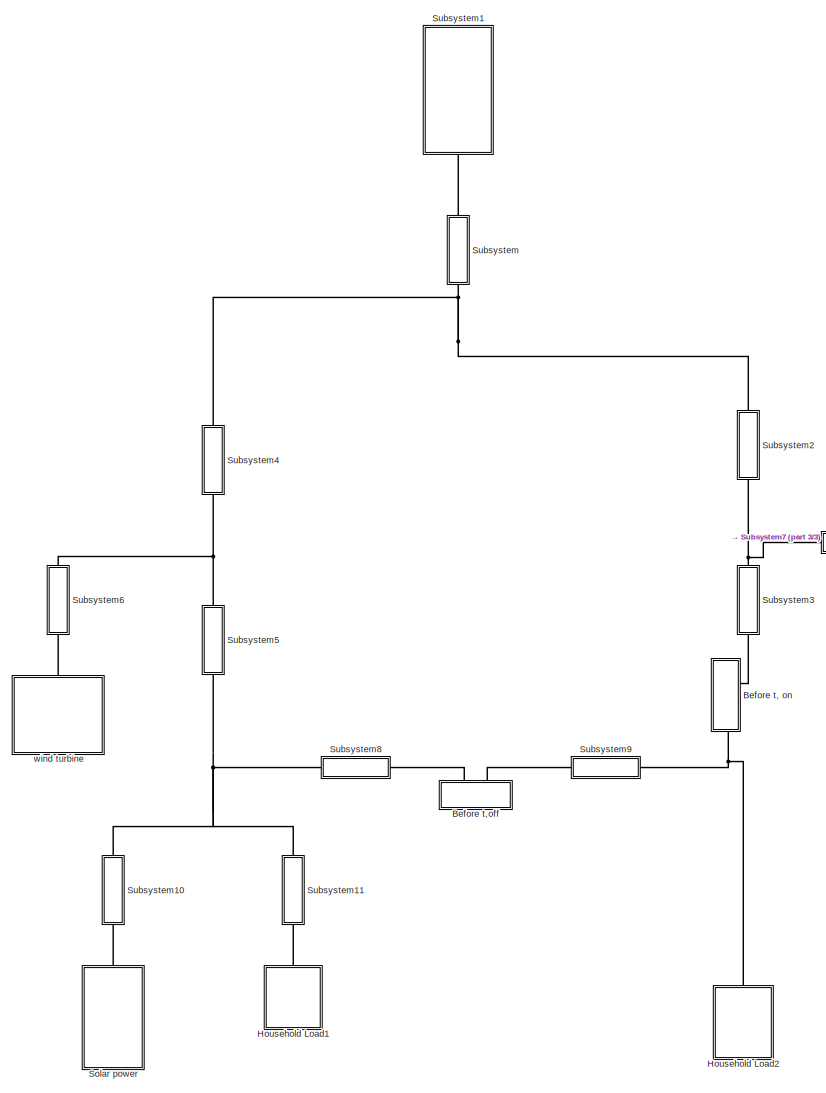
[diagram: root canvas - part 1/3, center side, full height]
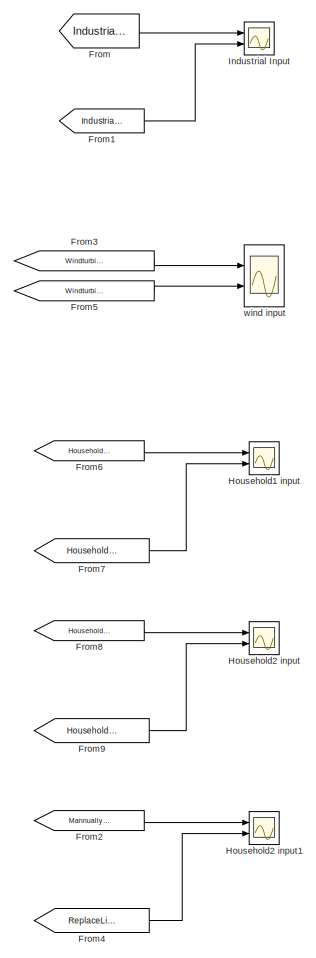
[diagram: root canvas - part 2/3, left side, full height]
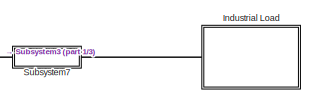
[diagram: root canvas - part 3/3, middle right region]
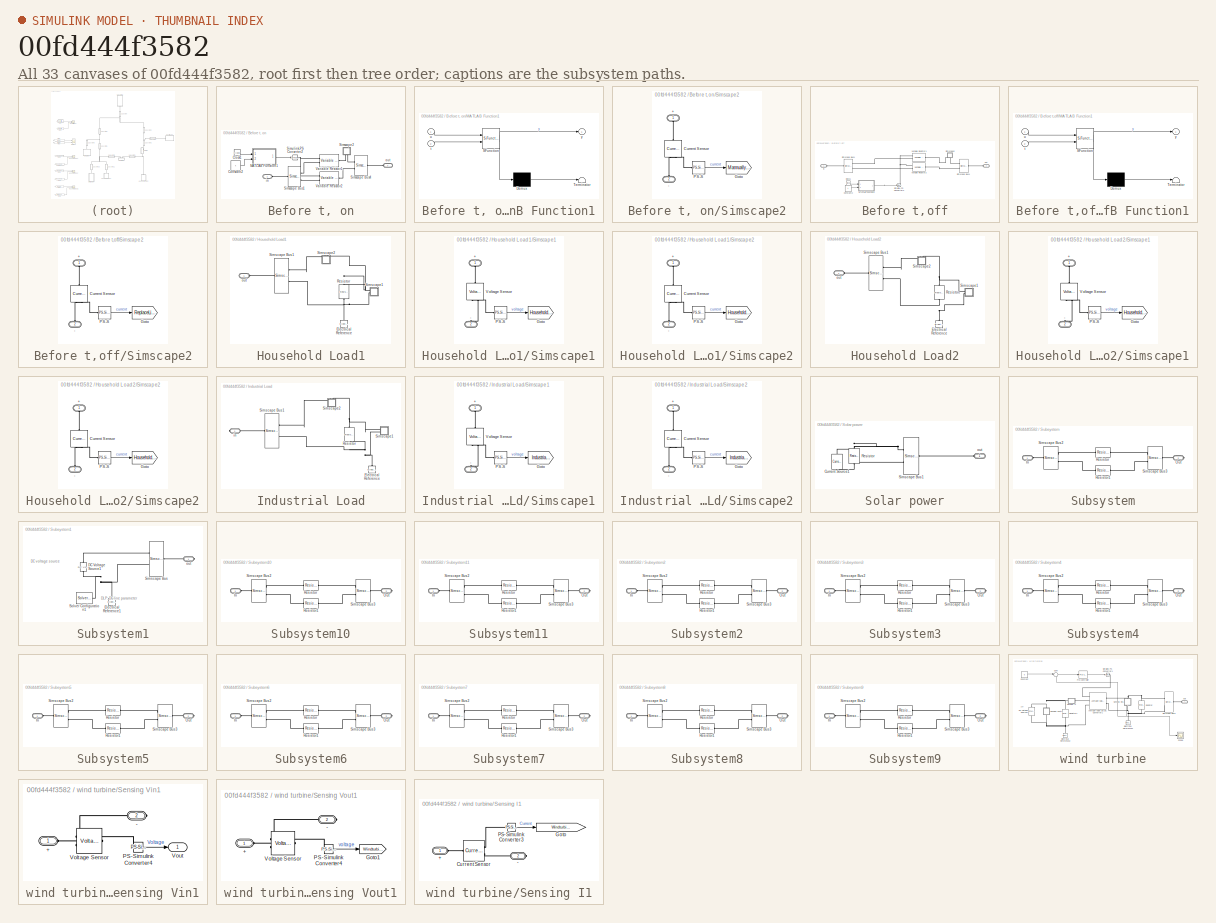
[diagram: thumbnail index - all 33 canvases of the model, root first then tree order]
MODEL slx_00fd444f3582
KIND model
CONFIG AbsTol = auto
CONFIG EnableMultiTasking = off
CONFIG FixedStep = auto
CONFIG MaxStep = auto
CONFIG MinStep = auto
CONFIG RelTol = 1e-3
CONFIG SampleTimeConstraint = Unconstrained
CONFIG Solver = VariableStepAuto
CONFIG SolverName = VariableStepAuto
CONFIG StartTime = 0.0
CONFIG StopTime = 5
BLOCK [SubSystem] Before t, on
  Ports = [0, 0, 0, 0, 0, 2]
  RequestExecContextInheritance = off
BLOCK [Clock] Before t, on/Clock1
BLOCK [Constant] Before t, on/Constant2
  Value = t
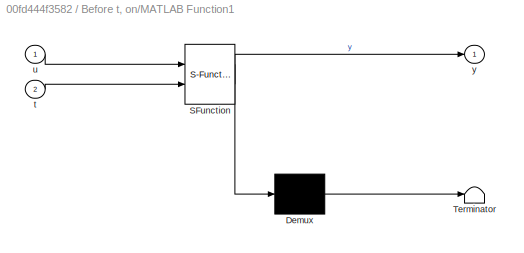
BLOCK [SubSystem] Before t, on/MATLAB Function1
  ErrorFcn = Stateflow.Translate.translate
  PermitHierarchicalResolution = ExplicitOnly
  Ports = [2, 1]
  RequestExecContextInheritance = off
  SFBlockType = MATLAB Function
  TreatAsAtomicUnit = on
BLOCK [Demux] Before t, on/MATLAB Function1/ Demux 
  DisplayOption = bar
  Outputs = 1
  Ports = [1, 1]
BLOCK [S-Function] Before t, on/MATLAB Function1/ SFunction 
  EnableBusSupport = on
  FunctionName = sf_sfun
  PortCounts = [2 2]
  Ports = [2, 2]
  SFcnIsStateOwnerBlock = off
  SFunctionDeploymentMode = off
  Tag = Stateflow S-Function 3
BLOCK [Terminator] Before t, on/MATLAB Function1/ Terminator 
BLOCK [Inport] Before t, on/MATLAB Function1/t
  IconDisplay = Port number
  Port = 2
BLOCK [Inport] Before t, on/MATLAB Function1/u
  IconDisplay = Port number
BLOCK [Outport] Before t, on/MATLAB Function1/y
  IconDisplay = Port number
BLOCK [SimscapeBus] Before t, on/Simscape Bus1
  HierarchyStrings = High;Low
  Ports = [0, 0, 0, 0, 0, 2, 1]
BLOCK [SimscapeBus] Before t, on/Simscape Bus4
  HierarchyStrings = High;Low
  Ports = [0, 0, 0, 0, 0, 2, 1]
BLOCK [SubSystem] Before t, on/Simscape2
  Ports = [0, 0, 0, 0, 0, 2]
  RequestExecContextInheritance = off
BLOCK [PMIOPort] Before t, on/Simscape2/+
  Side = Left
BLOCK [PMIOPort] Before t, on/Simscape2/-
  Port = 2
  Side = Left
BLOCK [Reference] Before t, on/Simscape2/Current Sensor  REF=fl_lib/Electrical/Electrical Sensors/Current Sensor
  Ports = [0, 0, 0, 0, 0, 1, 2]
  SourceBlock = fl_lib/Electrical/Electrical Sensors/Current Sensor
  SourceProductBaseCode = SS
  SourceProductName = Simscape
  SourceType = Current Sensor
BLOCK [Goto] Before t, on/Simscape2/Goto
  GotoTag = MannuallyBreak
  IconDisplay = Signal name
  TagVisibility = global
BLOCK [Reference] Before t, on/Simscape2/PS-S  REF=nesl_utility/PS-Simulink
Converter
  Ports = [0, 1, 0, 0, 0, 1]
  SourceBlock = nesl_utility/PS-Simulink\nConverter
  SourceProductBaseCode = SS
  SourceProductName = Simscape
  SourceType = PS-Simulink\nConverter
BLOCK [Reference] Before t, on/Simulink-PS Converter2  REF=nesl_utility/Simulink-PS
Converter
  Ports = [1, 0, 0, 0, 0, 0, 1]
  SourceBlock = nesl_utility/Simulink-PS\nConverter
  SourceProductBaseCode = SS
  SourceProductName = Simscape
  SourceType = Simulink-PS\nConverter
BLOCK [Reference] Before t, on/Variable Resistor1  REF=fl_lib/Electrical/Electrical Elements/Variable Resistor
  Ports = [0, 0, 0, 0, 0, 2, 1]
  SourceBlock = fl_lib/Electrical/Electrical Elements/Variable Resistor
  SourceProductBaseCode = SS
  SourceProductName = Simscape
  SourceType = Variable Resistor
BLOCK [Reference] Before t, on/Variable Resistor2  REF=fl_lib/Electrical/Electrical Elements/Variable Resistor
  Ports = [0, 0, 0, 0, 0, 2, 1]
  SourceBlock = fl_lib/Electrical/Electrical Elements/Variable Resistor
  SourceProductBaseCode = SS
  SourceProductName = Simscape
  SourceType = Variable Resistor
BLOCK [PMIOPort] Before t, on/in
  Side = Left
BLOCK [PMIOPort] Before t, on/out
  Port = 2
  Side = Left
BLOCK [SubSystem] Before t,off
  Ports = [0, 0, 0, 0, 0, 2]
  RequestExecContextInheritance = off
BLOCK [Clock] Before t,off/Clock1
BLOCK [Constant] Before t,off/Constant2
  Value = t
BLOCK [SubSystem] Before t,off/MATLAB Function1
  ErrorFcn = Stateflow.Translate.translate
  PermitHierarchicalResolution = ExplicitOnly
  Ports = [2, 1]
  RequestExecContextInheritance = off
  SFBlockType = MATLAB Function
  TreatAsAtomicUnit = on
BLOCK [Demux] Before t,off/MATLAB Function1/ Demux 
  DisplayOption = bar
  Outputs = 1
  Ports = [1, 1]
BLOCK [S-Function] Before t,off/MATLAB Function1/ SFunction 
  EnableBusSupport = on
  FunctionName = sf_sfun
  PortCounts = [2 2]
  Ports = [2, 2]
  SFcnIsStateOwnerBlock = off
  SFunctionDeploymentMode = off
  Tag = Stateflow S-Function 1
BLOCK [Terminator] Before t,off/MATLAB Function1/ Terminator 
BLOCK [Inport] Before t,off/MATLAB Function1/t
  IconDisplay = Port number
  Port = 2
BLOCK [Inport] Before t,off/MATLAB Function1/u
  IconDisplay = Port number
BLOCK [Outport] Before t,off/MATLAB Function1/y
  IconDisplay = Port number
BLOCK [SimscapeBus] Before t,off/Simscape Bus1
  HierarchyStrings = High;Low
  Ports = [0, 0, 0, 0, 0, 2, 1]
BLOCK [SimscapeBus] Before t,off/Simscape Bus4
  HierarchyStrings = High;Low
  Ports = [0, 0, 0, 0, 0, 2, 1]
BLOCK [SubSystem] Before t,off/Simscape2
  Ports = [0, 0, 0, 0, 0, 2]
  RequestExecContextInheritance = off
BLOCK [PMIOPort] Before t,off/Simscape2/+
  Side = Left
BLOCK [PMIOPort] Before t,off/Simscape2/-
  Port = 2
  Side = Left
BLOCK [Reference] Before t,off/Simscape2/Current Sensor  REF=fl_lib/Electrical/Electrical Sensors/Current Sensor
  Ports = [0, 0, 0, 0, 0, 1, 2]
  SourceBlock = fl_lib/Electrical/Electrical Sensors/Current Sensor
  SourceProductBaseCode = SS
  SourceProductName = Simscape
  SourceType = Current Sensor
BLOCK [Goto] Before t,off/Simscape2/Goto
  GotoTag = ReplaceLine
  IconDisplay = Signal name
  TagVisibility = global
BLOCK [Reference] Before t,off/Simscape2/PS-S  REF=nesl_utility/PS-Simulink
Converter
  Ports = [0, 1, 0, 0, 0, 1]
  SourceBlock = nesl_utility/PS-Simulink\nConverter
  SourceProductBaseCode = SS
  SourceProductName = Simscape
  SourceType = PS-Simulink\nConverter
BLOCK [Reference] Before t,off/Simulink-PS Converter2  REF=nesl_utility/Simulink-PS
Converter
  Ports = [1, 0, 0, 0, 0, 0, 1]
  SourceBlock = nesl_utility/Simulink-PS\nConverter
  SourceProductBaseCode = SS
  SourceProductName = Simscape
  SourceType = Simulink-PS\nConverter
BLOCK [Reference] Before t,off/Variable Resistor1  REF=fl_lib/Electrical/Electrical Elements/Variable Resistor
  Ports = [0, 0, 0, 0, 0, 2, 1]
  SourceBlock = fl_lib/Electrical/Electrical Elements/Variable Resistor
  SourceProductBaseCode = SS
  SourceProductName = Simscape
  SourceType = Variable Resistor
BLOCK [Reference] Before t,off/Variable Resistor2  REF=fl_lib/Electrical/Electrical Elements/Variable Resistor
  Ports = [0, 0, 0, 0, 0, 2, 1]
  SourceBlock = fl_lib/Electrical/Electrical Elements/Variable Resistor
  SourceProductBaseCode = SS
  SourceProductName = Simscape
  SourceType = Variable Resistor
BLOCK [PMIOPort] Before t,off/in
  Side = Left
BLOCK [PMIOPort] Before t,off/out
  Port = 2
  Side = Left
BLOCK [From] From
  GotoTag = IndustrialVoltage
  IconDisplay = Signal name
  TagVisibility = global
BLOCK [From] From1
  GotoTag = IndustrialCurrent
  IconDisplay = Signal name
  TagVisibility = global
BLOCK [From] From2
  GotoTag = MannuallyBreak
  TagVisibility = global
BLOCK [From] From3
  GotoTag = WindturbineVoltage
  IconDisplay = Signal name
  TagVisibility = global
BLOCK [From] From4
  GotoTag = ReplaceLine
  TagVisibility = global
BLOCK [From] From5
  GotoTag = WindturbineCurrent
  IconDisplay = Signal name
  TagVisibility = global
BLOCK [From] From6
  GotoTag = Household1Voltage
  IconDisplay = Signal name
  TagVisibility = global
BLOCK [From] From7
  GotoTag = Household1Current
  IconDisplay = Signal name
  TagVisibility = global
BLOCK [From] From8
  GotoTag = Household2Voltage
  IconDisplay = Signal name
  TagVisibility = global
BLOCK [From] From9
  GotoTag = Household2Current
  IconDisplay = Signal name
  TagVisibility = global
BLOCK [SubSystem] Household Load1
  Ports = [0, 0, 0, 0, 0, 1]
  RequestExecContextInheritance = off
BLOCK [Reference] Household Load1/Electrical Reference  REF=fl_lib/Electrical/Electrical Elements/Electrical Reference
  Ports = [0, 0, 0, 0, 0, 1]
  SourceBlock = fl_lib/Electrical/Electrical Elements/Electrical Reference
  SourceProductBaseCode = SS
  SourceProductName = Simscape
  SourceType = Electrical Reference
BLOCK [Reference] Household Load1/Resistor  REF=fl_lib/Electrical/Electrical Elements/Resistor
  Ports = [0, 0, 0, 0, 0, 1, 1]
  SourceBlock = fl_lib/Electrical/Electrical Elements/Resistor
  SourceProductBaseCode = SS
  SourceProductName = Simscape
  SourceType = Resistor
BLOCK [SimscapeBus] Household Load1/Simscape Bus1
  HierarchyStrings = High;Low
  Ports = [0, 0, 0, 0, 0, 2, 1]
BLOCK [SubSystem] Household Load1/Simscape1
  Ports = [0, 0, 0, 0, 0, 2]
  RequestExecContextInheritance = off
BLOCK [PMIOPort] Household Load1/Simscape1/+
  Side = Left
BLOCK [PMIOPort] Household Load1/Simscape1/-
  Port = 2
  Side = Left
BLOCK [Goto] Household Load1/Simscape1/Goto
  GotoTag = Household1Voltage
  IconDisplay = Signal name
  TagVisibility = global
BLOCK [Reference] Household Load1/Simscape1/PS-S  REF=nesl_utility/PS-Simulink
Converter
  Ports = [0, 1, 0, 0, 0, 1]
  SourceBlock = nesl_utility/PS-Simulink\nConverter
  SourceProductBaseCode = SS
  SourceProductName = Simscape
  SourceType = PS-Simulink\nConverter
BLOCK [Reference] Household Load1/Simscape1/Voltage Sensor  REF=fl_lib/Electrical/Electrical Sensors/Voltage Sensor
  Ports = [0, 0, 0, 0, 0, 1, 2]
  SourceBlock = fl_lib/Electrical/Electrical Sensors/Voltage Sensor
  SourceProductBaseCode = SS
  SourceProductName = Simscape
  SourceType = Voltage Sensor
BLOCK [SubSystem] Household Load1/Simscape2
  Ports = [0, 0, 0, 0, 0, 2]
  RequestExecContextInheritance = off
BLOCK [PMIOPort] Household Load1/Simscape2/+
  Side = Left
BLOCK [PMIOPort] Household Load1/Simscape2/-
  Port = 2
  Side = Left
BLOCK [Reference] Household Load1/Simscape2/Current Sensor  REF=fl_lib/Electrical/Electrical Sensors/Current Sensor
  Ports = [0, 0, 0, 0, 0, 1, 2]
  SourceBlock = fl_lib/Electrical/Electrical Sensors/Current Sensor
  SourceProductBaseCode = SS
  SourceProductName = Simscape
  SourceType = Current Sensor
BLOCK [Goto] Household Load1/Simscape2/Goto
  GotoTag = Household1Current
  IconDisplay = Signal name
  TagVisibility = global
BLOCK [Reference] Household Load1/Simscape2/PS-S  REF=nesl_utility/PS-Simulink
Converter
  Ports = [0, 1, 0, 0, 0, 1]
  SourceBlock = nesl_utility/PS-Simulink\nConverter
  SourceProductBaseCode = SS
  SourceProductName = Simscape
  SourceType = PS-Simulink\nConverter
BLOCK [PMIOPort] Household Load1/out
  Side = Left
BLOCK [SubSystem] Household Load2
  Ports = [0, 0, 0, 0, 0, 1]
  RequestExecContextInheritance = off
BLOCK [Reference] Household Load2/Electrical Reference  REF=fl_lib/Electrical/Electrical Elements/Electrical Reference
  Ports = [0, 0, 0, 0, 0, 1]
  SourceBlock = fl_lib/Electrical/Electrical Elements/Electrical Reference
  SourceProductBaseCode = SS
  SourceProductName = Simscape
  SourceType = Electrical Reference
BLOCK [Reference] Household Load2/Resistor  REF=fl_lib/Electrical/Electrical Elements/Resistor
  Ports = [0, 0, 0, 0, 0, 1, 1]
  SourceBlock = fl_lib/Electrical/Electrical Elements/Resistor
  SourceProductBaseCode = SS
  SourceProductName = Simscape
  SourceType = Resistor
BLOCK [SimscapeBus] Household Load2/Simscape Bus1
  HierarchyStrings = High;Low
  Ports = [0, 0, 0, 0, 0, 2, 1]
BLOCK [SubSystem] Household Load2/Simscape1
  Ports = [0, 0, 0, 0, 0, 2]
  RequestExecContextInheritance = off
BLOCK [PMIOPort] Household Load2/Simscape1/+
  Side = Left
BLOCK [PMIOPort] Household Load2/Simscape1/-
  Port = 2
  Side = Left
BLOCK [Goto] Household Load2/Simscape1/Goto
  GotoTag = Household2Voltage
  IconDisplay = Signal name
  TagVisibility = global
BLOCK [Reference] Household Load2/Simscape1/PS-S  REF=nesl_utility/PS-Simulink
Converter
  Ports = [0, 1, 0, 0, 0, 1]
  SourceBlock = nesl_utility/PS-Simulink\nConverter
  SourceProductBaseCode = SS
  SourceProductName = Simscape
  SourceType = PS-Simulink\nConverter
BLOCK [Reference] Household Load2/Simscape1/Voltage Sensor  REF=fl_lib/Electrical/Electrical Sensors/Voltage Sensor
  Ports = [0, 0, 0, 0, 0, 1, 2]
  SourceBlock = fl_lib/Electrical/Electrical Sensors/Voltage Sensor
  SourceProductBaseCode = SS
  SourceProductName = Simscape
  SourceType = Voltage Sensor
BLOCK [SubSystem] Household Load2/Simscape2
  Ports = [0, 0, 0, 0, 0, 2]
  RequestExecContextInheritance = off
BLOCK [PMIOPort] Household Load2/Simscape2/+
  Side = Left
BLOCK [PMIOPort] Household Load2/Simscape2/-
  Port = 2
  Side = Left
BLOCK [Reference] Household Load2/Simscape2/Current Sensor  REF=fl_lib/Electrical/Electrical Sensors/Current Sensor
  Ports = [0, 0, 0, 0, 0, 1, 2]
  SourceBlock = fl_lib/Electrical/Electrical Sensors/Current Sensor
  SourceProductBaseCode = SS
  SourceProductName = Simscape
  SourceType = Current Sensor
BLOCK [Goto] Household Load2/Simscape2/Goto
  GotoTag = Household2Current
  IconDisplay = Signal name
  TagVisibility = global
BLOCK [Reference] Household Load2/Simscape2/PS-S  REF=nesl_utility/PS-Simulink
Converter
  Ports = [0, 1, 0, 0, 0, 1]
  SourceBlock = nesl_utility/PS-Simulink\nConverter
  SourceProductBaseCode = SS
  SourceProductName = Simscape
  SourceType = PS-Simulink\nConverter
BLOCK [PMIOPort] Household Load2/out
  Side = Left
BLOCK [Scope] Household1 input
  Floating = off
  NumInputPorts = 2
  Ports = [2]
  ScopeSpecificationString = Simulink.scopes.TimeScopeBlockCfg('CurrentConfiguration', extmgr.ConfigurationSet(extmgr.Configuration('Core','General UI',true,'FigureColor',[0.501960784313725 0.501960784313725 0.501960784313725]),extmgr.Configuration('Core','Source UI',true),extmgr.Configuration('Sources','WiredSimulink',true,'DataLoggingSaveFormat','Array','DataLoggingDecimation','1','DataLoggingVariableName','ScopeData2'),ext...<+2646ch>
  Tag = PublishScope
BLOCK [Scope] Household2 input
  Floating = off
  NumInputPorts = 2
  Ports = [2]
  ScopeSpecificationString = Simulink.scopes.TimeScopeBlockCfg('CurrentConfiguration', extmgr.ConfigurationSet(extmgr.Configuration('Core','General UI',true,'FigureColor',[0.501960784313725 0.501960784313725 0.501960784313725]),extmgr.Configuration('Core','Source UI',true),extmgr.Configuration('Sources','WiredSimulink',true,'DataLoggingSaveFormat','Array','DataLoggingDecimation','1','DataLoggingVariableName','ScopeData3'),ext...<+2620ch>
  Tag = PublishScope
BLOCK [Scope] Household2 input1
  Floating = off
  NumInputPorts = 2
  Ports = [2]
  ScopeSpecificationString = Simulink.scopes.TimeScopeBlockCfg('CurrentConfiguration', extmgr.ConfigurationSet(extmgr.Configuration('Core','General UI',true,'FigureColor',[0.501960784313725 0.501960784313725 0.501960784313725]),extmgr.Configuration('Core','Source UI',true),extmgr.Configuration('Sources','WiredSimulink',true,'DataLoggingSaveFormat','Array','DataLoggingDecimation','1','DataLoggingVariableName','ScopeData1'),ext...<+2641ch>
  Tag = PublishScope
BLOCK [Scope] Industrial Input
  Floating = off
  NumInputPorts = 2
  Ports = [2]
  ScopeSpecificationString = Simulink.scopes.TimeScopeBlockCfg('CurrentConfiguration', extmgr.ConfigurationSet(extmgr.Configuration('Core','General UI',true,'FigureColor',[0.501960784313725 0.501960784313725 0.501960784313725]),extmgr.Configuration('Core','Source UI',true),extmgr.Configuration('Sources','WiredSimulink',true,'DataLoggingSaveFormat','Array','DataLoggingDecimation','1'),extmgr.Configuration('Visuals','Time Domai...<+2603ch>
  Tag = PublishScope
BLOCK [SubSystem] Industrial Load
  Ports = [0, 0, 0, 0, 0, 0, 1]
  RequestExecContextInheritance = off
BLOCK [Reference] Industrial Load/Electrical Reference  REF=fl_lib/Electrical/Electrical Elements/Electrical Reference
  Ports = [0, 0, 0, 0, 0, 1]
  SourceBlock = fl_lib/Electrical/Electrical Elements/Electrical Reference
  SourceProductBaseCode = SS
  SourceProductName = Simscape
  SourceType = Electrical Reference
BLOCK [Reference] Industrial Load/Resistor  REF=fl_lib/Electrical/Electrical Elements/Resistor
  Ports = [0, 0, 0, 0, 0, 1, 1]
  SourceBlock = fl_lib/Electrical/Electrical Elements/Resistor
  SourceProductBaseCode = SS
  SourceProductName = Simscape
  SourceType = Resistor
BLOCK [SimscapeBus] Industrial Load/Simscape Bus1
  HierarchyStrings = High;Low
  Ports = [0, 0, 0, 0, 0, 2, 1]
BLOCK [SubSystem] Industrial Load/Simscape1
  Ports = [0, 0, 0, 0, 0, 2]
  RequestExecContextInheritance = off
BLOCK [PMIOPort] Industrial Load/Simscape1/+
  Side = Left
BLOCK [PMIOPort] Industrial Load/Simscape1/-
  Port = 2
  Side = Left
BLOCK [Goto] Industrial Load/Simscape1/Goto
  GotoTag = IndustrialVoltage
  IconDisplay = Signal name
  TagVisibility = global
BLOCK [Reference] Industrial Load/Simscape1/PS-S  REF=nesl_utility/PS-Simulink
Converter
  Ports = [0, 1, 0, 0, 0, 1]
  SourceBlock = nesl_utility/PS-Simulink\nConverter
  SourceProductBaseCode = SS
  SourceProductName = Simscape
  SourceType = PS-Simulink\nConverter
BLOCK [Reference] Industrial Load/Simscape1/Voltage Sensor  REF=fl_lib/Electrical/Electrical Sensors/Voltage Sensor
  Ports = [0, 0, 0, 0, 0, 1, 2]
  SourceBlock = fl_lib/Electrical/Electrical Sensors/Voltage Sensor
  SourceProductBaseCode = SS
  SourceProductName = Simscape
  SourceType = Voltage Sensor
BLOCK [SubSystem] Industrial Load/Simscape2
  Ports = [0, 0, 0, 0, 0, 2]
  RequestExecContextInheritance = off
BLOCK [PMIOPort] Industrial Load/Simscape2/+
  Side = Left
BLOCK [PMIOPort] Industrial Load/Simscape2/-
  Port = 2
  Side = Left
BLOCK [Reference] Industrial Load/Simscape2/Current Sensor  REF=fl_lib/Electrical/Electrical Sensors/Current Sensor
  Ports = [0, 0, 0, 0, 0, 1, 2]
  SourceBlock = fl_lib/Electrical/Electrical Sensors/Current Sensor
  SourceProductBaseCode = SS
  SourceProductName = Simscape
  SourceType = Current Sensor
BLOCK [Goto] Industrial Load/Simscape2/Goto
  GotoTag = IndustrialCurrent
  IconDisplay = Signal name
  TagVisibility = global
BLOCK [Reference] Industrial Load/Simscape2/PS-S  REF=nesl_utility/PS-Simulink
Converter
  Ports = [0, 1, 0, 0, 0, 1]
  SourceBlock = nesl_utility/PS-Simulink\nConverter
  SourceProductBaseCode = SS
  SourceProductName = Simscape
  SourceType = PS-Simulink\nConverter
BLOCK [PMIOPort] Industrial Load/in
  Side = Right
BLOCK [SubSystem] Solar power
  Ports = [0, 0, 0, 0, 0, 1]
  RequestExecContextInheritance = off
BLOCK [Reference] Solar power/Current Source1  REF=ee_lib/Sources/Current Source
  Ports = [0, 0, 0, 0, 0, 1, 1]
  SourceBlock = ee_lib/Sources/Current Source
  SourceProductBaseCode = PS
  SourceProductName = Simscape Electrical
  SourceType = Current Source
BLOCK [Reference] Solar power/Resistor  REF=ee_lib/Passive/Resistor
  Ports = [0, 0, 0, 0, 0, 1, 1]
  SourceBlock = ee_lib/Passive/Resistor
  SourceProductBaseCode = PS
  SourceProductName = Simscape Electrical
  SourceType = Resistor
BLOCK [SimscapeBus] Solar power/Simscape Bus1
  HierarchyStrings = High;Low
  Ports = [0, 0, 0, 0, 0, 2, 1]
BLOCK [PMIOPort] Solar power/out
  Side = Left
BLOCK [SubSystem] Subsystem
  Ports = [0, 0, 0, 0, 0, 1, 1]
  RequestExecContextInheritance = off
BLOCK [PMIOPort] Subsystem/In
  Side = Left
BLOCK [PMIOPort] Subsystem/Out
  Port = 2
  Side = Right
BLOCK [Reference] Subsystem/Resistor  REF=fl_lib/Electrical/Electrical Elements/Resistor
  Ports = [0, 0, 0, 0, 0, 1, 1]
  SourceBlock = fl_lib/Electrical/Electrical Elements/Resistor
  SourceProductBaseCode = SS
  SourceProductName = Simscape
  SourceType = Resistor
BLOCK [Reference] Subsystem/Resistor1  REF=fl_lib/Electrical/Electrical Elements/Resistor
  Ports = [0, 0, 0, 0, 0, 1, 1]
  SourceBlock = fl_lib/Electrical/Electrical Elements/Resistor
  SourceProductBaseCode = SS
  SourceProductName = Simscape
  SourceType = Resistor
BLOCK [SimscapeBus] Subsystem/Simscape Bus2
  HierarchyStrings = High;Low
  Ports = [0, 0, 0, 0, 0, 2, 1]
BLOCK [SimscapeBus] Subsystem/Simscape Bus3
  HierarchyStrings = High;Low
  Ports = [0, 0, 0, 0, 0, 2, 1]
BLOCK [SubSystem] Subsystem1
  Ports = [0, 0, 0, 0, 0, 0, 1]
  RequestExecContextInheritance = off
BLOCK [Reference] Subsystem1/DC Voltage Source1  REF=ee_lib/Additional
Components/SPICE Sources/DC Voltage Source
  Ports = [0, 0, 0, 0, 0, 1, 1]
  SourceBlock = ee_lib/Additional\nComponents/SPICE Sources/DC Voltage Source
  SourceProductBaseCode = PS
  SourceProductName = Simscape Electrical
  SourceType = DC Voltage Source
BLOCK [Reference] Subsystem1/Electrical Reference1  REF=fl_lib/Electrical/Electrical Elements/Electrical Reference
  Ports = [0, 0, 0, 0, 0, 1]
  SourceBlock = fl_lib/Electrical/Electrical Elements/Electrical Reference
  SourceProductBaseCode = SS
  SourceProductName = Simscape
  SourceType = Electrical Reference
BLOCK [SimscapeBus] Subsystem1/Simscape Bus
  HierarchyStrings = High;Low
  Ports = [0, 0, 0, 0, 0, 2, 1]
BLOCK [Reference] Subsystem1/Solver Configuration1  REF=nesl_utility/Solver
Configuration
  Ports = [0, 0, 0, 0, 0, 0, 1]
  SourceBlock = nesl_utility/Solver\nConfiguration
  SourceProductBaseCode = SS
  SourceProductName = Simscape
  SourceType = Solver\nConfiguration
BLOCK [PMIOPort] Subsystem1/out
  Side = Right
BLOCK [SubSystem] Subsystem10
  Ports = [0, 0, 0, 0, 0, 1, 1]
  RequestExecContextInheritance = off
BLOCK [PMIOPort] Subsystem10/In
  Side = Left
BLOCK [PMIOPort] Subsystem10/Out
  Port = 2
  Side = Right
BLOCK [Reference] Subsystem10/Resistor  REF=fl_lib/Electrical/Electrical Elements/Resistor
  Ports = [0, 0, 0, 0, 0, 1, 1]
  SourceBlock = fl_lib/Electrical/Electrical Elements/Resistor
  SourceProductBaseCode = SS
  SourceProductName = Simscape
  SourceType = Resistor
BLOCK [Reference] Subsystem10/Resistor1  REF=fl_lib/Electrical/Electrical Elements/Resistor
  Ports = [0, 0, 0, 0, 0, 1, 1]
  SourceBlock = fl_lib/Electrical/Electrical Elements/Resistor
  SourceProductBaseCode = SS
  SourceProductName = Simscape
  SourceType = Resistor
BLOCK [SimscapeBus] Subsystem10/Simscape Bus2
  HierarchyStrings = High;Low
  Ports = [0, 0, 0, 0, 0, 2, 1]
BLOCK [SimscapeBus] Subsystem10/Simscape Bus3
  HierarchyStrings = High;Low
  Ports = [0, 0, 0, 0, 0, 2, 1]
BLOCK [SubSystem] Subsystem11
  Ports = [0, 0, 0, 0, 0, 1, 1]
  RequestExecContextInheritance = off
BLOCK [PMIOPort] Subsystem11/In
  Side = Left
BLOCK [PMIOPort] Subsystem11/Out
  Port = 2
  Side = Right
BLOCK [Reference] Subsystem11/Resistor  REF=fl_lib/Electrical/Electrical Elements/Resistor
  Ports = [0, 0, 0, 0, 0, 1, 1]
  SourceBlock = fl_lib/Electrical/Electrical Elements/Resistor
  SourceProductBaseCode = SS
  SourceProductName = Simscape
  SourceType = Resistor
BLOCK [Reference] Subsystem11/Resistor1  REF=fl_lib/Electrical/Electrical Elements/Resistor
  Ports = [0, 0, 0, 0, 0, 1, 1]
  SourceBlock = fl_lib/Electrical/Electrical Elements/Resistor
  SourceProductBaseCode = SS
  SourceProductName = Simscape
  SourceType = Resistor
BLOCK [SimscapeBus] Subsystem11/Simscape Bus2
  HierarchyStrings = High;Low
  Ports = [0, 0, 0, 0, 0, 2, 1]
BLOCK [SimscapeBus] Subsystem11/Simscape Bus3
  HierarchyStrings = High;Low
  Ports = [0, 0, 0, 0, 0, 2, 1]
BLOCK [SubSystem] Subsystem2
  Ports = [0, 0, 0, 0, 0, 1, 1]
  RequestExecContextInheritance = off
BLOCK [PMIOPort] Subsystem2/In
  Side = Left
BLOCK [PMIOPort] Subsystem2/Out
  Port = 2
  Side = Right
BLOCK [Reference] Subsystem2/Resistor  REF=fl_lib/Electrical/Electrical Elements/Resistor
  Ports = [0, 0, 0, 0, 0, 1, 1]
  SourceBlock = fl_lib/Electrical/Electrical Elements/Resistor
  SourceProductBaseCode = SS
  SourceProductName = Simscape
  SourceType = Resistor
BLOCK [Reference] Subsystem2/Resistor1  REF=fl_lib/Electrical/Electrical Elements/Resistor
  Ports = [0, 0, 0, 0, 0, 1, 1]
  SourceBlock = fl_lib/Electrical/Electrical Elements/Resistor
  SourceProductBaseCode = SS
  SourceProductName = Simscape
  SourceType = Resistor
BLOCK [SimscapeBus] Subsystem2/Simscape Bus2
  HierarchyStrings = High;Low
  Ports = [0, 0, 0, 0, 0, 2, 1]
BLOCK [SimscapeBus] Subsystem2/Simscape Bus3
  HierarchyStrings = High;Low
  Ports = [0, 0, 0, 0, 0, 2, 1]
BLOCK [SubSystem] Subsystem3
  Ports = [0, 0, 0, 0, 0, 1, 1]
  RequestExecContextInheritance = off
BLOCK [PMIOPort] Subsystem3/In
  Side = Left
BLOCK [PMIOPort] Subsystem3/Out
  Port = 2
  Side = Right
BLOCK [Reference] Subsystem3/Resistor  REF=fl_lib/Electrical/Electrical Elements/Resistor
  Ports = [0, 0, 0, 0, 0, 1, 1]
  SourceBlock = fl_lib/Electrical/Electrical Elements/Resistor
  SourceProductBaseCode = SS
  SourceProductName = Simscape
  SourceType = Resistor
BLOCK [Reference] Subsystem3/Resistor1  REF=fl_lib/Electrical/Electrical Elements/Resistor
  Ports = [0, 0, 0, 0, 0, 1, 1]
  SourceBlock = fl_lib/Electrical/Electrical Elements/Resistor
  SourceProductBaseCode = SS
  SourceProductName = Simscape
  SourceType = Resistor
BLOCK [SimscapeBus] Subsystem3/Simscape Bus2
  HierarchyStrings = High;Low
  Ports = [0, 0, 0, 0, 0, 2, 1]
BLOCK [SimscapeBus] Subsystem3/Simscape Bus3
  HierarchyStrings = High;Low
  Ports = [0, 0, 0, 0, 0, 2, 1]
BLOCK [SubSystem] Subsystem4
  Ports = [0, 0, 0, 0, 0, 1, 1]
  RequestExecContextInheritance = off
BLOCK [PMIOPort] Subsystem4/In
  Side = Left
BLOCK [PMIOPort] Subsystem4/Out
  Port = 2
  Side = Right
BLOCK [Reference] Subsystem4/Resistor  REF=fl_lib/Electrical/Electrical Elements/Resistor
  Ports = [0, 0, 0, 0, 0, 1, 1]
  SourceBlock = fl_lib/Electrical/Electrical Elements/Resistor
  SourceProductBaseCode = SS
  SourceProductName = Simscape
  SourceType = Resistor
BLOCK [Reference] Subsystem4/Resistor1  REF=fl_lib/Electrical/Electrical Elements/Resistor
  Ports = [0, 0, 0, 0, 0, 1, 1]
  SourceBlock = fl_lib/Electrical/Electrical Elements/Resistor
  SourceProductBaseCode = SS
  SourceProductName = Simscape
  SourceType = Resistor
BLOCK [SimscapeBus] Subsystem4/Simscape Bus2
  HierarchyStrings = High;Low
  Ports = [0, 0, 0, 0, 0, 2, 1]
BLOCK [SimscapeBus] Subsystem4/Simscape Bus3
  HierarchyStrings = High;Low
  Ports = [0, 0, 0, 0, 0, 2, 1]
BLOCK [SubSystem] Subsystem5
  Ports = [0, 0, 0, 0, 0, 1, 1]
  RequestExecContextInheritance = off
BLOCK [PMIOPort] Subsystem5/In
  Side = Left
BLOCK [PMIOPort] Subsystem5/Out
  Port = 2
  Side = Right
BLOCK [Reference] Subsystem5/Resistor  REF=fl_lib/Electrical/Electrical Elements/Resistor
  Ports = [0, 0, 0, 0, 0, 1, 1]
  SourceBlock = fl_lib/Electrical/Electrical Elements/Resistor
  SourceProductBaseCode = SS
  SourceProductName = Simscape
  SourceType = Resistor
BLOCK [Reference] Subsystem5/Resistor1  REF=fl_lib/Electrical/Electrical Elements/Resistor
  Ports = [0, 0, 0, 0, 0, 1, 1]
  SourceBlock = fl_lib/Electrical/Electrical Elements/Resistor
  SourceProductBaseCode = SS
  SourceProductName = Simscape
  SourceType = Resistor
BLOCK [SimscapeBus] Subsystem5/Simscape Bus2
  HierarchyStrings = High;Low
  Ports = [0, 0, 0, 0, 0, 2, 1]
BLOCK [SimscapeBus] Subsystem5/Simscape Bus3
  HierarchyStrings = High;Low
  Ports = [0, 0, 0, 0, 0, 2, 1]
BLOCK [SubSystem] Subsystem6
  Ports = [0, 0, 0, 0, 0, 1, 1]
  RequestExecContextInheritance = off
BLOCK [PMIOPort] Subsystem6/In
  Side = Left
BLOCK [PMIOPort] Subsystem6/Out
  Port = 2
  Side = Right
BLOCK [Reference] Subsystem6/Resistor  REF=fl_lib/Electrical/Electrical Elements/Resistor
  Ports = [0, 0, 0, 0, 0, 1, 1]
  SourceBlock = fl_lib/Electrical/Electrical Elements/Resistor
  SourceProductBaseCode = SS
  SourceProductName = Simscape
  SourceType = Resistor
BLOCK [Reference] Subsystem6/Resistor1  REF=fl_lib/Electrical/Electrical Elements/Resistor
  Ports = [0, 0, 0, 0, 0, 1, 1]
  SourceBlock = fl_lib/Electrical/Electrical Elements/Resistor
  SourceProductBaseCode = SS
  SourceProductName = Simscape
  SourceType = Resistor
BLOCK [SimscapeBus] Subsystem6/Simscape Bus2
  HierarchyStrings = High;Low
  Ports = [0, 0, 0, 0, 0, 2, 1]
BLOCK [SimscapeBus] Subsystem6/Simscape Bus3
  HierarchyStrings = High;Low
  Ports = [0, 0, 0, 0, 0, 2, 1]
BLOCK [SubSystem] Subsystem7
  Ports = [0, 0, 0, 0, 0, 1, 1]
  RequestExecContextInheritance = off
BLOCK [PMIOPort] Subsystem7/In
  Side = Left
BLOCK [PMIOPort] Subsystem7/Out
  Port = 2
  Side = Right
BLOCK [Reference] Subsystem7/Resistor  REF=fl_lib/Electrical/Electrical Elements/Resistor
  Ports = [0, 0, 0, 0, 0, 1, 1]
  SourceBlock = fl_lib/Electrical/Electrical Elements/Resistor
  SourceProductBaseCode = SS
  SourceProductName = Simscape
  SourceType = Resistor
BLOCK [Reference] Subsystem7/Resistor1  REF=fl_lib/Electrical/Electrical Elements/Resistor
  Ports = [0, 0, 0, 0, 0, 1, 1]
  SourceBlock = fl_lib/Electrical/Electrical Elements/Resistor
  SourceProductBaseCode = SS
  SourceProductName = Simscape
  SourceType = Resistor
BLOCK [SimscapeBus] Subsystem7/Simscape Bus2
  HierarchyStrings = High;Low
  Ports = [0, 0, 0, 0, 0, 2, 1]
BLOCK [SimscapeBus] Subsystem7/Simscape Bus3
  HierarchyStrings = High;Low
  Ports = [0, 0, 0, 0, 0, 2, 1]
BLOCK [SubSystem] Subsystem8
  Ports = [0, 0, 0, 0, 0, 1, 1]
  RequestExecContextInheritance = off
BLOCK [PMIOPort] Subsystem8/In
  Side = Left
BLOCK [PMIOPort] Subsystem8/Out
  Port = 2
  Side = Right
BLOCK [Reference] Subsystem8/Resistor  REF=fl_lib/Electrical/Electrical Elements/Resistor
  Ports = [0, 0, 0, 0, 0, 1, 1]
  SourceBlock = fl_lib/Electrical/Electrical Elements/Resistor
  SourceProductBaseCode = SS
  SourceProductName = Simscape
  SourceType = Resistor
BLOCK [Reference] Subsystem8/Resistor1  REF=fl_lib/Electrical/Electrical Elements/Resistor
  Ports = [0, 0, 0, 0, 0, 1, 1]
  SourceBlock = fl_lib/Electrical/Electrical Elements/Resistor
  SourceProductBaseCode = SS
  SourceProductName = Simscape
  SourceType = Resistor
BLOCK [SimscapeBus] Subsystem8/Simscape Bus2
  HierarchyStrings = High;Low
  Ports = [0, 0, 0, 0, 0, 2, 1]
BLOCK [SimscapeBus] Subsystem8/Simscape Bus3
  HierarchyStrings = High;Low
  Ports = [0, 0, 0, 0, 0, 2, 1]
BLOCK [SubSystem] Subsystem9
  Ports = [0, 0, 0, 0, 0, 1, 1]
  RequestExecContextInheritance = off
BLOCK [PMIOPort] Subsystem9/In
  Side = Left
BLOCK [PMIOPort] Subsystem9/Out
  Port = 2
  Side = Right
BLOCK [Reference] Subsystem9/Resistor  REF=fl_lib/Electrical/Electrical Elements/Resistor
  Ports = [0, 0, 0, 0, 0, 1, 1]
  SourceBlock = fl_lib/Electrical/Electrical Elements/Resistor
  SourceProductBaseCode = SS
  SourceProductName = Simscape
  SourceType = Resistor
BLOCK [Reference] Subsystem9/Resistor1  REF=fl_lib/Electrical/Electrical Elements/Resistor
  Ports = [0, 0, 0, 0, 0, 1, 1]
  SourceBlock = fl_lib/Electrical/Electrical Elements/Resistor
  SourceProductBaseCode = SS
  SourceProductName = Simscape
  SourceType = Resistor
BLOCK [SimscapeBus] Subsystem9/Simscape Bus2
  HierarchyStrings = High;Low
  Ports = [0, 0, 0, 0, 0, 2, 1]
BLOCK [SimscapeBus] Subsystem9/Simscape Bus3
  HierarchyStrings = High;Low
  Ports = [0, 0, 0, 0, 0, 2, 1]
BLOCK [Scope] wind input
  Floating = off
  NumInputPorts = 2
  Ports = [2]
  ScopeSpecificationString = Simulink.scopes.TimeScopeBlockCfg('CurrentConfiguration', extmgr.ConfigurationSet(extmgr.Configuration('Core','General UI',true,'FigureColor',[0.501960784313725 0.501960784313725 0.501960784313725]),extmgr.Configuration('Core','Source UI',true),extmgr.Configuration('Sources','WiredSimulink',true,'DataLoggingSaveFormat','Array','DataLoggingDecimation','1','DataLoggingVariableName','ScopeData1'),ext...<+2624ch>
  Tag = PublishScope
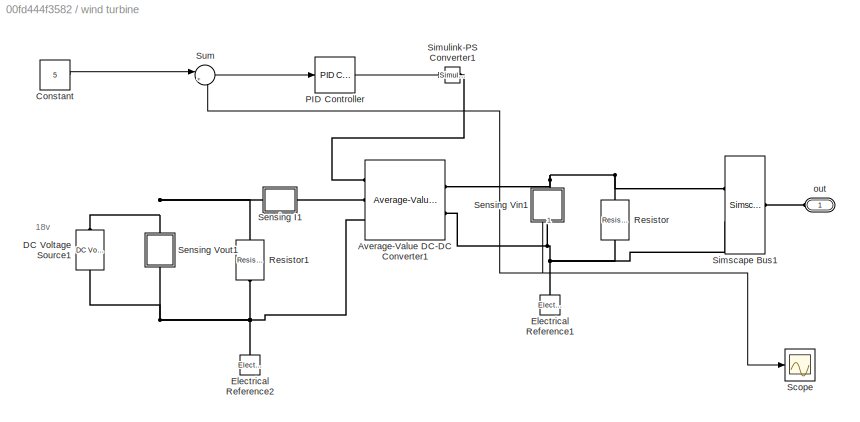
BLOCK [SubSystem] wind turbine
  Ports = [0, 0, 0, 0, 0, 1]
  RequestExecContextInheritance = off
BLOCK [Reference] wind turbine/Average-Value DC-DC Converter1  REF=ee_lib/Semiconductors &
Converters/Converters/Average-Value DC-DC
Converter
  Ports = [0, 0, 0, 0, 0, 3, 2]
  SourceBlock = ee_lib/Semiconductors &\nConverters/Converters/Average-Value DC-DC\nConverter
  SourceProductBaseCode = PS
  SourceProductName = Simscape Electrical
  SourceType = Average-Value DC-DC\nConverter
BLOCK [Constant] wind turbine/Constant
  Value = 5
BLOCK [Reference] wind turbine/DC Voltage Source1  REF=fl_lib/Electrical/Electrical Sources/DC Voltage Source
  Ports = [0, 0, 0, 0, 0, 1, 1]
  SourceBlock = fl_lib/Electrical/Electrical Sources/DC Voltage Source
  SourceProductBaseCode = SS
  SourceProductName = Simscape
  SourceType = DC Voltage Source
BLOCK [Reference] wind turbine/Electrical Reference1  REF=fl_lib/Electrical/Electrical Elements/Electrical Reference
  Ports = [0, 0, 0, 0, 0, 1]
  SourceBlock = fl_lib/Electrical/Electrical Elements/Electrical Reference
  SourceProductBaseCode = SS
  SourceProductName = Simscape
  SourceType = Electrical Reference
BLOCK [Reference] wind turbine/Electrical Reference2  REF=fl_lib/Electrical/Electrical Elements/Electrical Reference
  Ports = [0, 0, 0, 0, 0, 1]
  SourceBlock = fl_lib/Electrical/Electrical Elements/Electrical Reference
  SourceProductBaseCode = SS
  SourceProductName = Simscape
  SourceType = Electrical Reference
BLOCK [Reference] wind turbine/PID Controller  REF=simulink/Continuous/PID Controller
  Ports = [1, 1]
  SourceBlock = simulink/Continuous/PID Controller
  SourceProductBaseCode = SL
  SourceProductName = Simulink
  SourceType = PID 1dof
BLOCK [Reference] wind turbine/Resistor  REF=fl_lib/Electrical/Electrical Elements/Resistor
  Ports = [0, 0, 0, 0, 0, 1, 1]
  SourceBlock = fl_lib/Electrical/Electrical Elements/Resistor
  SourceProductBaseCode = SS
  SourceProductName = Simscape
  SourceType = Resistor
BLOCK [Reference] wind turbine/Resistor1  REF=fl_lib/Electrical/Electrical Elements/Resistor
  Ports = [0, 0, 0, 0, 0, 1, 1]
  SourceBlock = fl_lib/Electrical/Electrical Elements/Resistor
  SourceProductBaseCode = SS
  SourceProductName = Simscape
  SourceType = Resistor
BLOCK [Scope] wind turbine/Scope
  Floating = off
  NumInputPorts = 1
  Ports = [1]
  ScopeSpecificationString = Simulink.scopes.TimeScopeBlockCfg('CurrentConfiguration', extmgr.ConfigurationSet(extmgr.Configuration('Core','General UI',true),extmgr.Configuration('Core','Source UI',true),extmgr.Configuration('Sources','WiredSimulink',true,'DataLoggingVariableName','ScopeData1'),extmgr.Configuration('Visuals','Time Domain',true,'SerializedDisplays',{struct('MinYLimReal','-2.2275','MaxYLimReal','20.0475','YLabe...<+1416ch>
BLOCK [SubSystem] wind turbine/Sensing I1
  Ports = [0, 0, 0, 0, 0, 1, 1]
  RequestExecContextInheritance = off
BLOCK [PMIOPort] wind turbine/Sensing I1/+
  Side = Left
BLOCK [PMIOPort] wind turbine/Sensing I1/-
  Port = 2
  Side = Right
BLOCK [Reference] wind turbine/Sensing I1/Current Sensor  REF=fl_lib/Electrical/Electrical Sensors/Current Sensor
  Ports = [0, 0, 0, 0, 0, 1, 2]
  SourceBlock = fl_lib/Electrical/Electrical Sensors/Current Sensor
  SourceProductBaseCode = SS
  SourceProductName = Simscape
  SourceType = Current Sensor
BLOCK [Goto] wind turbine/Sensing I1/Goto
  GotoTag = WindturbineCurrent
  IconDisplay = Signal name
  TagVisibility = global
BLOCK [Reference] wind turbine/Sensing I1/PS-Simulink Converter3  REF=nesl_utility/PS-Simulink
Converter
  Ports = [0, 1, 0, 0, 0, 1]
  SourceBlock = nesl_utility/PS-Simulink\nConverter
  SourceProductBaseCode = SS
  SourceProductName = Simscape
  SourceType = PS-Simulink\nConverter
BLOCK [SubSystem] wind turbine/Sensing Vin1
  Ports = [0, 1, 0, 0, 0, 1, 1]
  RequestExecContextInheritance = off
BLOCK [PMIOPort] wind turbine/Sensing Vin1/+
  Side = Left
BLOCK [PMIOPort] wind turbine/Sensing Vin1/-
  Port = 2
  Side = Right
BLOCK [Reference] wind turbine/Sensing Vin1/PS-Simulink Converter4  REF=nesl_utility/PS-Simulink
Converter
  Ports = [0, 1, 0, 0, 0, 1]
  SourceBlock = nesl_utility/PS-Simulink\nConverter
  SourceProductBaseCode = SS
  SourceProductName = Simscape
  SourceType = PS-Simulink\nConverter
BLOCK [Reference] wind turbine/Sensing Vin1/Voltage Sensor  REF=fl_lib/Electrical/Electrical Sensors/Voltage Sensor
  Ports = [0, 0, 0, 0, 0, 1, 2]
  SourceBlock = fl_lib/Electrical/Electrical Sensors/Voltage Sensor
  SourceProductBaseCode = SS
  SourceProductName = Simscape
  SourceType = Voltage Sensor
BLOCK [Outport] wind turbine/Sensing Vin1/Vout
  IconDisplay = Port number
BLOCK [SubSystem] wind turbine/Sensing Vout1
  Ports = [0, 0, 0, 0, 0, 1, 1]
  RequestExecContextInheritance = off
BLOCK [PMIOPort] wind turbine/Sensing Vout1/+
  Side = Left
BLOCK [PMIOPort] wind turbine/Sensing Vout1/-
  Port = 2
  Side = Right
BLOCK [Goto] wind turbine/Sensing Vout1/Goto1
  GotoTag = WindturbineVoltage
  IconDisplay = Signal name
  TagVisibility = global
BLOCK [Reference] wind turbine/Sensing Vout1/PS-Simulink Converter4  REF=nesl_utility/PS-Simulink
Converter
  Ports = [0, 1, 0, 0, 0, 1]
  SourceBlock = nesl_utility/PS-Simulink\nConverter
  SourceProductBaseCode = SS
  SourceProductName = Simscape
  SourceType = PS-Simulink\nConverter
BLOCK [Reference] wind turbine/Sensing Vout1/Voltage Sensor  REF=fl_lib/Electrical/Electrical Sensors/Voltage Sensor
  Ports = [0, 0, 0, 0, 0, 1, 2]
  SourceBlock = fl_lib/Electrical/Electrical Sensors/Voltage Sensor
  SourceProductBaseCode = SS
  SourceProductName = Simscape
  SourceType = Voltage Sensor
BLOCK [SimscapeBus] wind turbine/Simscape Bus1
  HierarchyStrings = High;Low
  Ports = [0, 0, 0, 0, 0, 2, 1]
BLOCK [Reference] wind turbine/Simulink-PS Converter1  REF=nesl_utility/Simulink-PS
Converter
  Ports = [1, 0, 0, 0, 0, 0, 1]
  SourceBlock = nesl_utility/Simulink-PS\nConverter
  SourceProductBaseCode = SS
  SourceProductName = Simscape
  SourceType = Simulink-PS\nConverter
BLOCK [Sum] wind turbine/Sum
  IconShape = round
  InputSameDT = off
  Inputs = |+-
  OutDataTypeStr = Inherit: Inherit via internal rule
  Ports = [2, 1]
  SaturateOnIntegerOverflow = off
BLOCK [PMIOPort] wind turbine/out
  Side = Left
ANNOTATION Subsystem1: DC voltage source
ANNOTATION Subsystem1: DLP: DC line parameter
ANNOTATION wind turbine: 18v
LINE Before t, on/Clock1:1 -> Before t, on/MATLAB Function1:1
LINE Before t, on/Constant2:1 -> Before t, on/MATLAB Function1:2
LINE Before t, on/MATLAB Function1:1 -> Before t, on/Simulink-PS Converter2:1
LINE Before t, on/Simscape2/PS-S:1 -> Before t, on/Simscape2/Goto:1
LINE Before t,off/Clock1:1 -> Before t,off/MATLAB Function1:1
LINE Before t,off/Constant2:1 -> Before t,off/MATLAB Function1:2
LINE Before t,off/MATLAB Function1:1 -> Before t,off/Simulink-PS Converter2:1
LINE Before t,off/Simscape2/PS-S:1 -> Before t,off/Simscape2/Goto:1
LINE From1:1 -> Industrial Input:2
LINE From2:1 -> Household2 input1:1
LINE From3:1 -> wind input:1
LINE From4:1 -> Household2 input1:2
LINE From5:1 -> wind input:2
LINE From6:1 -> Household1 input:1
LINE From7:1 -> Household1 input:2
LINE From8:1 -> Household2 input:1
LINE From9:1 -> Household2 input:2
LINE From:1 -> Industrial Input:1
LINE Household Load1/Simscape1/PS-S:1 -> Household Load1/Simscape1/Goto:1
LINE Household Load1/Simscape2/PS-S:1 -> Household Load1/Simscape2/Goto:1
LINE Household Load2/Simscape1/PS-S:1 -> Household Load2/Simscape1/Goto:1
LINE Household Load2/Simscape2/PS-S:1 -> Household Load2/Simscape2/Goto:1
LINE Industrial Load/Simscape1/PS-S:1 -> Industrial Load/Simscape1/Goto:1
LINE Industrial Load/Simscape2/PS-S:1 -> Industrial Load/Simscape2/Goto:1
LINE wind turbine/Constant:1 -> wind turbine/Sum:1
LINE wind turbine/PID Controller:1 -> wind turbine/Simulink-PS Converter1:1
LINE wind turbine/Sensing I1/PS-Simulink Converter3:1 -> wind turbine/Sensing I1/Goto:1
LINE wind turbine/Sensing Vin1/PS-Simulink Converter4:1 -> wind turbine/Sensing Vin1/Vout:1
NET wind turbine/Sensing Vin1:1 -> wind turbine/Scope:1, wind turbine/Sum:2
LINE wind turbine/Sensing Vout1/PS-Simulink Converter4:1 -> wind turbine/Sensing Vout1/Goto1:1
LINE wind turbine/Sum:1 -> wind turbine/PID Controller:1
PLINE Before t, on/Simscape Bus1:LConn1 -- Before t, on/Variable Resistor1:LConn2
PLINE Before t, on/Simscape Bus1:LConn2 -- Before t, on/Variable Resistor2:LConn2
PLINE Before t, on/Simscape Bus1:RConn1 -- Before t, on/in:RConn1
PLINE Before t, on/Simscape Bus4:LConn1 -- Before t, on/Simscape2:LConn2
PLINE Before t, on/Simscape Bus4:LConn2 -- Before t, on/Variable Resistor2:RConn1
PLINE Before t, on/Simscape Bus4:RConn1 -- Before t, on/out:RConn1
PLINE Before t, on/Simscape2/+:RConn1 -- Before t, on/Simscape2/Current Sensor:LConn1
PLINE Before t, on/Simscape2/-:RConn1 -- Before t, on/Simscape2/Current Sensor:RConn2
PLINE Before t, on/Simscape2/Current Sensor:RConn1 -- Before t, on/Simscape2/PS-S:LConn1
PLINE Before t, on/Simscape2:LConn1 -- Before t, on/Variable Resistor1:RConn1
PNET net1: Before t, on/Simulink-PS Converter2:RConn1 -- Before t, on/Variable Resistor1:LConn1 -- Before t, on/Variable Resistor2:LConn1
PLINE Before t, on:LConn1 -- Subsystem3:RConn1
PNET net2: Before t, on:LConn2 -- Household Load2:LConn1 -- Subsystem9:LConn1
PLINE Before t,off/Simscape Bus1:LConn1 -- Before t,off/Variable Resistor1:LConn2
PLINE Before t,off/Simscape Bus1:LConn2 -- Before t,off/Variable Resistor2:LConn2
PLINE Before t,off/Simscape Bus1:RConn1 -- Before t,off/in:RConn1
PLINE Before t,off/Simscape Bus4:LConn1 -- Before t,off/Simscape2:LConn2
PLINE Before t,off/Simscape Bus4:LConn2 -- Before t,off/Variable Resistor2:RConn1
PLINE Before t,off/Simscape Bus4:RConn1 -- Before t,off/out:RConn1
PLINE Before t,off/Simscape2/+:RConn1 -- Before t,off/Simscape2/Current Sensor:LConn1
PLINE Before t,off/Simscape2/-:RConn1 -- Before t,off/Simscape2/Current Sensor:RConn2
PLINE Before t,off/Simscape2/Current Sensor:RConn1 -- Before t,off/Simscape2/PS-S:LConn1
PLINE Before t,off/Simscape2:LConn1 -- Before t,off/Variable Resistor1:RConn1
PNET net3: Before t,off/Simulink-PS Converter2:RConn1 -- Before t,off/Variable Resistor1:LConn1 -- Before t,off/Variable Resistor2:LConn1
PLINE Before t,off:LConn1 -- Subsystem8:LConn1
PLINE Before t,off:LConn2 -- Subsystem9:RConn1
PNET net4: Household Load1/Electrical Reference:LConn1 -- Household Load1/Resistor:RConn1 -- Household Load1/Simscape Bus1:LConn2 -- Household Load1/Simscape1:LConn2
PNET net5: Household Load1/Resistor:LConn1 -- Household Load1/Simscape1:LConn1 -- Household Load1/Simscape2:LConn2
PLINE Household Load1/Simscape Bus1:LConn1 -- Household Load1/Simscape2:LConn1
PLINE Household Load1/Simscape Bus1:RConn1 -- Household Load1/out:RConn1
PLINE Household Load1/Simscape1/+:RConn1 -- Household Load1/Simscape1/Voltage Sensor:LConn1
PLINE Household Load1/Simscape1/-:RConn1 -- Household Load1/Simscape1/Voltage Sensor:RConn2
PLINE Household Load1/Simscape1/PS-S:LConn1 -- Household Load1/Simscape1/Voltage Sensor:RConn1
PLINE Household Load1/Simscape2/+:RConn1 -- Household Load1/Simscape2/Current Sensor:LConn1
PLINE Household Load1/Simscape2/-:RConn1 -- Household Load1/Simscape2/Current Sensor:RConn2
PLINE Household Load1/Simscape2/Current Sensor:RConn1 -- Household Load1/Simscape2/PS-S:LConn1
PLINE Household Load1:LConn1 -- Subsystem11:RConn1
PNET net6: Household Load2/Electrical Reference:LConn1 -- Household Load2/Resistor:RConn1 -- Household Load2/Simscape Bus1:LConn2 -- Household Load2/Simscape1:LConn2
PNET net7: Household Load2/Resistor:LConn1 -- Household Load2/Simscape1:LConn1 -- Household Load2/Simscape2:LConn2
PLINE Household Load2/Simscape Bus1:LConn1 -- Household Load2/Simscape2:LConn1
PLINE Household Load2/Simscape Bus1:RConn1 -- Household Load2/out:RConn1
PLINE Household Load2/Simscape1/+:RConn1 -- Household Load2/Simscape1/Voltage Sensor:LConn1
PLINE Household Load2/Simscape1/-:RConn1 -- Household Load2/Simscape1/Voltage Sensor:RConn2
PLINE Household Load2/Simscape1/PS-S:LConn1 -- Household Load2/Simscape1/Voltage Sensor:RConn1
PLINE Household Load2/Simscape2/+:RConn1 -- Household Load2/Simscape2/Current Sensor:LConn1
PLINE Household Load2/Simscape2/-:RConn1 -- Household Load2/Simscape2/Current Sensor:RConn2
PLINE Household Load2/Simscape2/Current Sensor:RConn1 -- Household Load2/Simscape2/PS-S:LConn1
PNET net8: Industrial Load/Electrical Reference:LConn1 -- Industrial Load/Resistor:RConn1 -- Industrial Load/Simscape Bus1:LConn2 -- Industrial Load/Simscape1:LConn2
PNET net9: Industrial Load/Resistor:LConn1 -- Industrial Load/Simscape1:LConn1 -- Industrial Load/Simscape2:LConn2
PLINE Industrial Load/Simscape Bus1:LConn1 -- Industrial Load/Simscape2:LConn1
PLINE Industrial Load/Simscape Bus1:RConn1 -- Industrial Load/in:RConn1
PLINE Industrial Load/Simscape1/+:RConn1 -- Industrial Load/Simscape1/Voltage Sensor:LConn1
PLINE Industrial Load/Simscape1/-:RConn1 -- Industrial Load/Simscape1/Voltage Sensor:RConn2
PLINE Industrial Load/Simscape1/PS-S:LConn1 -- Industrial Load/Simscape1/Voltage Sensor:RConn1
PLINE Industrial Load/Simscape2/+:RConn1 -- Industrial Load/Simscape2/Current Sensor:LConn1
PLINE Industrial Load/Simscape2/-:RConn1 -- Industrial Load/Simscape2/Current Sensor:RConn2
PLINE Industrial Load/Simscape2/Current Sensor:RConn1 -- Industrial Load/Simscape2/PS-S:LConn1
PLINE Industrial Load:RConn1 -- Subsystem7:RConn1
PNET net10: Solar power/Current Source1:LConn1 -- Solar power/Resistor:LConn1 -- Solar power/Simscape Bus1:LConn1
PNET net11: Solar power/Current Source1:RConn1 -- Solar power/Resistor:RConn1 -- Solar power/Simscape Bus1:LConn2
PLINE Solar power/Simscape Bus1:RConn1 -- Solar power/out:RConn1
PLINE Solar power:LConn1 -- Subsystem10:RConn1
PLINE Subsystem/In:RConn1 -- Subsystem/Simscape Bus2:RConn1
PLINE Subsystem/Out:RConn1 -- Subsystem/Simscape Bus3:RConn1
PLINE Subsystem/Resistor1:LConn1 -- Subsystem/Simscape Bus2:LConn2
PLINE Subsystem/Resistor1:RConn1 -- Subsystem/Simscape Bus3:LConn2
PLINE Subsystem/Resistor:LConn1 -- Subsystem/Simscape Bus2:LConn1
PLINE Subsystem/Resistor:RConn1 -- Subsystem/Simscape Bus3:LConn1
PLINE Subsystem1/DC Voltage Source1:LConn1 -- Subsystem1/Simscape Bus:LConn1
PNET net12: Subsystem1/DC Voltage Source1:RConn1 -- Subsystem1/Electrical Reference1:LConn1 -- Subsystem1/Simscape Bus:LConn2 -- Subsystem1/Solver Configuration1:RConn1
PLINE Subsystem1/Simscape Bus:RConn1 -- Subsystem1/out:RConn1
PLINE Subsystem10/In:RConn1 -- Subsystem10/Simscape Bus2:RConn1
PLINE Subsystem10/Out:RConn1 -- Subsystem10/Simscape Bus3:RConn1
PLINE Subsystem10/Resistor1:LConn1 -- Subsystem10/Simscape Bus2:LConn2
PLINE Subsystem10/Resistor1:RConn1 -- Subsystem10/Simscape Bus3:LConn2
PLINE Subsystem10/Resistor:LConn1 -- Subsystem10/Simscape Bus2:LConn1
PLINE Subsystem10/Resistor:RConn1 -- Subsystem10/Simscape Bus3:LConn1
PNET net13: Subsystem10:LConn1 -- Subsystem11:LConn1 -- Subsystem5:RConn1 -- Subsystem8:RConn1
PLINE Subsystem11/In:RConn1 -- Subsystem11/Simscape Bus2:RConn1
PLINE Subsystem11/Out:RConn1 -- Subsystem11/Simscape Bus3:RConn1
PLINE Subsystem11/Resistor1:LConn1 -- Subsystem11/Simscape Bus2:LConn2
PLINE Subsystem11/Resistor1:RConn1 -- Subsystem11/Simscape Bus3:LConn2
PLINE Subsystem11/Resistor:LConn1 -- Subsystem11/Simscape Bus2:LConn1
PLINE Subsystem11/Resistor:RConn1 -- Subsystem11/Simscape Bus3:LConn1
PLINE Subsystem1:RConn1 -- Subsystem:LConn1
PLINE Subsystem2/In:RConn1 -- Subsystem2/Simscape Bus2:RConn1
PLINE Subsystem2/Out:RConn1 -- Subsystem2/Simscape Bus3:RConn1
PLINE Subsystem2/Resistor1:LConn1 -- Subsystem2/Simscape Bus2:LConn2
PLINE Subsystem2/Resistor1:RConn1 -- Subsystem2/Simscape Bus3:LConn2
PLINE Subsystem2/Resistor:LConn1 -- Subsystem2/Simscape Bus2:LConn1
PLINE Subsystem2/Resistor:RConn1 -- Subsystem2/Simscape Bus3:LConn1
PNET net14: Subsystem2:LConn1 -- Subsystem4:LConn1 -- Subsystem:RConn1
PNET net15: Subsystem2:RConn1 -- Subsystem3:LConn1 -- Subsystem7:LConn1
PLINE Subsystem3/In:RConn1 -- Subsystem3/Simscape Bus2:RConn1
PLINE Subsystem3/Out:RConn1 -- Subsystem3/Simscape Bus3:RConn1
PLINE Subsystem3/Resistor1:LConn1 -- Subsystem3/Simscape Bus2:LConn2
PLINE Subsystem3/Resistor1:RConn1 -- Subsystem3/Simscape Bus3:LConn2
PLINE Subsystem3/Resistor:LConn1 -- Subsystem3/Simscape Bus2:LConn1
PLINE Subsystem3/Resistor:RConn1 -- Subsystem3/Simscape Bus3:LConn1
PLINE Subsystem4/In:RConn1 -- Subsystem4/Simscape Bus2:RConn1
PLINE Subsystem4/Out:RConn1 -- Subsystem4/Simscape Bus3:RConn1
PLINE Subsystem4/Resistor1:LConn1 -- Subsystem4/Simscape Bus2:LConn2
PLINE Subsystem4/Resistor1:RConn1 -- Subsystem4/Simscape Bus3:LConn2
PLINE Subsystem4/Resistor:LConn1 -- Subsystem4/Simscape Bus2:LConn1
PLINE Subsystem4/Resistor:RConn1 -- Subsystem4/Simscape Bus3:LConn1
PNET net16: Subsystem4:RConn1 -- Subsystem5:LConn1 -- Subsystem6:RConn1
PLINE Subsystem5/In:RConn1 -- Subsystem5/Simscape Bus2:RConn1
PLINE Subsystem5/Out:RConn1 -- Subsystem5/Simscape Bus3:RConn1
PLINE Subsystem5/Resistor1:LConn1 -- Subsystem5/Simscape Bus2:LConn2
PLINE Subsystem5/Resistor1:RConn1 -- Subsystem5/Simscape Bus3:LConn2
PLINE Subsystem5/Resistor:LConn1 -- Subsystem5/Simscape Bus2:LConn1
PLINE Subsystem5/Resistor:RConn1 -- Subsystem5/Simscape Bus3:LConn1
PLINE Subsystem6/In:RConn1 -- Subsystem6/Simscape Bus2:RConn1
PLINE Subsystem6/Out:RConn1 -- Subsystem6/Simscape Bus3:RConn1
PLINE Subsystem6/Resistor1:LConn1 -- Subsystem6/Simscape Bus2:LConn2
PLINE Subsystem6/Resistor1:RConn1 -- Subsystem6/Simscape Bus3:LConn2
PLINE Subsystem6/Resistor:LConn1 -- Subsystem6/Simscape Bus2:LConn1
PLINE Subsystem6/Resistor:RConn1 -- Subsystem6/Simscape Bus3:LConn1
PLINE Subsystem6:LConn1 -- wind turbine:LConn1
PLINE Subsystem7/In:RConn1 -- Subsystem7/Simscape Bus2:RConn1
PLINE Subsystem7/Out:RConn1 -- Subsystem7/Simscape Bus3:RConn1
PLINE Subsystem7/Resistor1:LConn1 -- Subsystem7/Simscape Bus2:LConn2
PLINE Subsystem7/Resistor1:RConn1 -- Subsystem7/Simscape Bus3:LConn2
PLINE Subsystem7/Resistor:LConn1 -- Subsystem7/Simscape Bus2:LConn1
PLINE Subsystem7/Resistor:RConn1 -- Subsystem7/Simscape Bus3:LConn1
PLINE Subsystem8/In:RConn1 -- Subsystem8/Simscape Bus2:RConn1
PLINE Subsystem8/Out:RConn1 -- Subsystem8/Simscape Bus3:RConn1
PLINE Subsystem8/Resistor1:LConn1 -- Subsystem8/Simscape Bus2:LConn2
PLINE Subsystem8/Resistor1:RConn1 -- Subsystem8/Simscape Bus3:LConn2
PLINE Subsystem8/Resistor:LConn1 -- Subsystem8/Simscape Bus2:LConn1
PLINE Subsystem8/Resistor:RConn1 -- Subsystem8/Simscape Bus3:LConn1
PLINE Subsystem9/In:RConn1 -- Subsystem9/Simscape Bus2:RConn1
PLINE Subsystem9/Out:RConn1 -- Subsystem9/Simscape Bus3:RConn1
PLINE Subsystem9/Resistor1:LConn1 -- Subsystem9/Simscape Bus2:LConn2
PLINE Subsystem9/Resistor1:RConn1 -- Subsystem9/Simscape Bus3:LConn2
PLINE Subsystem9/Resistor:LConn1 -- Subsystem9/Simscape Bus2:LConn1
PLINE Subsystem9/Resistor:RConn1 -- Subsystem9/Simscape Bus3:LConn1
PLINE wind turbine/Average-Value DC-DC Converter1:LConn1 -- wind turbine/Simulink-PS Converter1:RConn1
PLINE wind turbine/Average-Value DC-DC Converter1:LConn2 -- wind turbine/Sensing I1:RConn1
PNET net17: wind turbine/Average-Value DC-DC Converter1:LConn3 -- wind turbine/DC Voltage Source1:RConn1 -- wind turbine/Electrical Reference2:LConn1 -- wind turbine/Resistor1:RConn1 -- wind turbine/Sensing Vout1:RConn1
PNET net18: wind turbine/Average-Value DC-DC Converter1:RConn1 -- wind turbine/Resistor:LConn1 -- wind turbine/Sensing Vin1:LConn1 -- wind turbine/Simscape Bus1:LConn1
PNET net19: wind turbine/Average-Value DC-DC Converter1:RConn2 -- wind turbine/Electrical Reference1:LConn1 -- wind turbine/Resistor:RConn1 -- wind turbine/Sensing Vin1:RConn1 -- wind turbine/Simscape Bus1:LConn2
PNET net20: wind turbine/DC Voltage Source1:LConn1 -- wind turbine/Resistor1:LConn1 -- wind turbine/Sensing I1:LConn1 -- wind turbine/Sensing Vout1:LConn1
PLINE wind turbine/Sensing I1/+:RConn1 -- wind turbine/Sensing I1/Current Sensor:LConn1
PLINE wind turbine/Sensing I1/-:RConn1 -- wind turbine/Sensing I1/Current Sensor:RConn2
PLINE wind turbine/Sensing I1/Current Sensor:RConn1 -- wind turbine/Sensing I1/PS-Simulink Converter3:LConn1
PLINE wind turbine/Sensing Vin1/+:RConn1 -- wind turbine/Sensing Vin1/Voltage Sensor:LConn1
PLINE wind turbine/Sensing Vin1/-:RConn1 -- wind turbine/Sensing Vin1/Voltage Sensor:RConn2
PLINE wind turbine/Sensing Vin1/PS-Simulink Converter4:LConn1 -- wind turbine/Sensing Vin1/Voltage Sensor:RConn1
PLINE wind turbine/Sensing Vout1/+:RConn1 -- wind turbine/Sensing Vout1/Voltage Sensor:LConn1
PLINE wind turbine/Sensing Vout1/-:RConn1 -- wind turbine/Sensing Vout1/Voltage Sensor:RConn2
PLINE wind turbine/Sensing Vout1/PS-Simulink Converter4:LConn1 -- wind turbine/Sensing Vout1/Voltage Sensor:RConn1
PLINE wind turbine/Simscape Bus1:RConn1 -- wind turbine/out:RConn1
note: NET lines group one-source signal fan-out (src -> all destinations, sorted); 1:1 wires keep LINE; PNET lines group multi-terminal physical nets as a canonical sorted terminal list (undirected conserving connections); 2-terminal nets keep the pairwise PLINE form
CHART Before t,off/MATLAB Function1 states=1 transitions=1
  STATE_LABEL 'eML_blk_kernel()'
  STATE_LABEL 'SCRIPT:\nfunction y = fcn(u,t)\n\ny = -tanh(10000*(u-t))*1e6+1e6+1e-6;\n'
CHART Before t, on/MATLAB Function1 states=1 transitions=1
  STATE_LABEL 'eML_blk_kernel()'
  STATE_LABEL 'SCRIPT:\nfunction y = fcn(u,t)\n\ny = tanh(10000*(u-t))*1e6+1e6+1e-6;\n'
